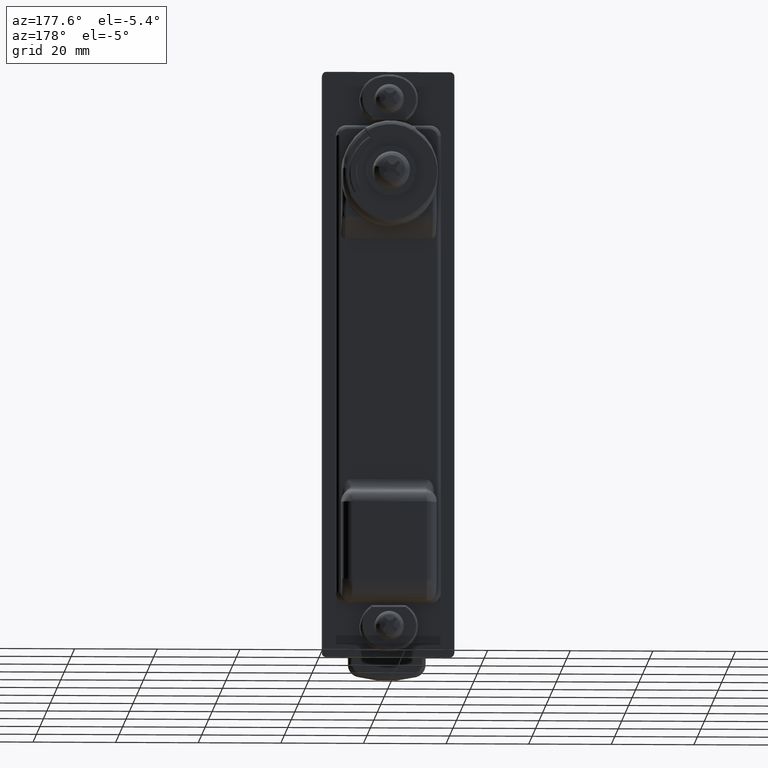
[diagram: clean part render]
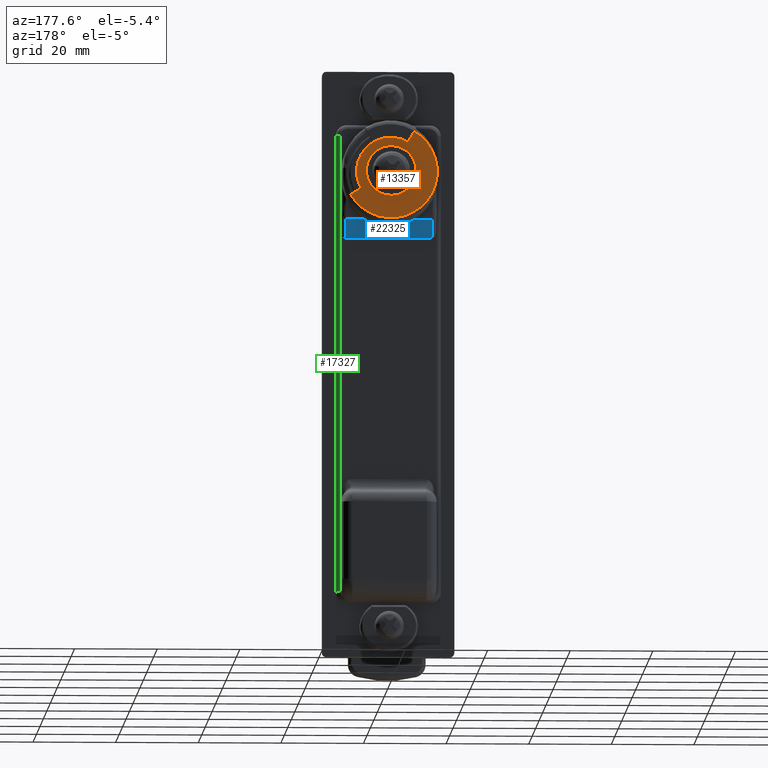
[diagram: same view with three faces highlighted in distinct colors, each labeled with its STEP entity id]
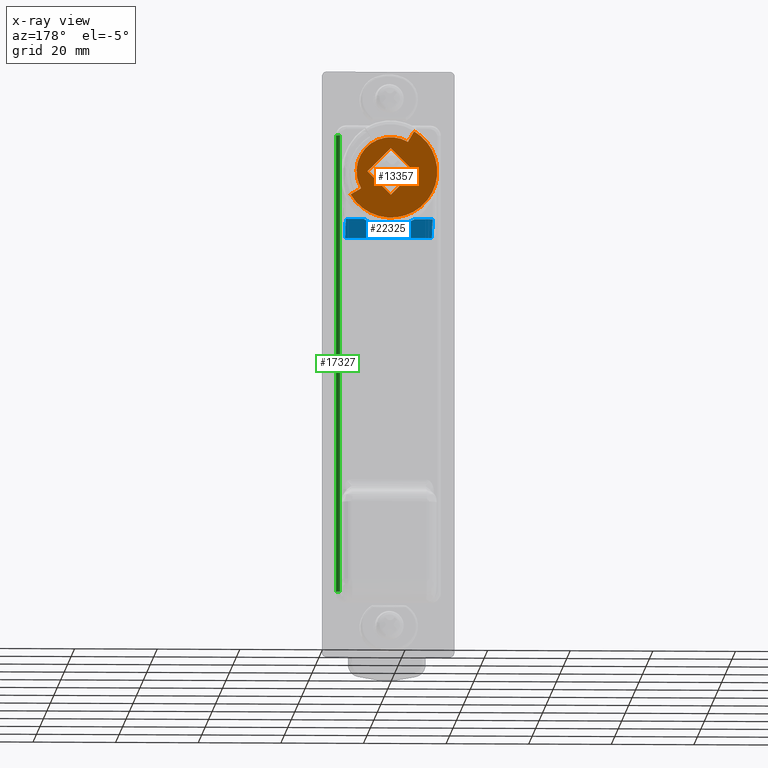
[diagram: x-ray of the same camera — body ghosted, the three highlighted faces saturated]
A machine part, auxiliary view with three faces highlighted in distinct colors.
The next image is the same camera in x-ray (body ghosted, the three faces saturated) — at least one of them is partly hidden behind the body in this view.
Their STEP definitions:

[orange] entity #13357 — the highlighted face is a freeform B-spline surface patch.
#13270=CARTESIAN_POINT('',(-2.0,-10.790604901378851,10.790604895435189));
#13271=CARTESIAN_POINT('',(-2.0,12.282398358279700,10.790604895435189));
#13272=CARTESIAN_POINT('',(-2.0,-10.790604901378851,-12.282398233863100));
#13273=CARTESIAN_POINT('',(-2.0,12.282398358279700,-12.282398233863100));
#13274=B_SPLINE_SURFACE_WITH_KNOTS('',1,1,((#13270,#13272),(#13271,#13273)),.UNSPECIFIED.,.F.,.F.,.U.,(2,2),(2,2),(0.0,23.073003259658542),(0.0,23.073003129298289),.UNSPECIFIED.);
#13275=CARTESIAN_POINT('',(-2.0,4.149999999989976,7.188010851390040));
#13276=VERTEX_POINT('',#13275);
#13277=CARTESIAN_POINT('',(-2.0,-7.188010851414280,-4.150000000021061));
#13278=VERTEX_POINT('',#13277);
#13279=CARTESIAN_POINT('',(-2.0,4.149999999989986,7.188010851390051));
#13280=CARTESIAN_POINT('',(-2.000000000000000,-1.365554716181401,10.372417851491468));
#13281=CARTESIAN_POINT('',(-2.0,-5.868986283850137,5.868986283819982));
#13282=CARTESIAN_POINT('',(-2.000000000000000,-10.372417851518872,1.365554716148496));
#13283=CARTESIAN_POINT('',(-2.0,-7.188010851414280,-4.150000000021061));
#13291=(BOUNDED_CURVE()B_SPLINE_CURVE(2,(#13279,#13280,#13281,#13282,#13283),.UNSPECIFIED.,.F.,.U.)B_SPLINE_CURVE_WITH_KNOTS((3,2,3),(0.0,0.500000000000000,1.0),.UNSPECIFIED.)CURVE()GEOMETRIC_REPRESENTATION_ITEM()RATIONAL_B_SPLINE_CURVE((1.0,0.793353340291566,1.0,0.793353340291566,1.0))REPRESENTATION_ITEM(''));
#13292=EDGE_CURVE('',#13276,#13278,#13291,.T.);
#13293=ORIENTED_EDGE('',*,*,#13292,.T.);
#13294=CARTESIAN_POINT('',(-2.0,-9.742785792579580,-5.625000000019149));
#13295=VERTEX_POINT('',#13294);
#13296=CARTESIAN_POINT('',(-2.0,-7.188010851414280,-4.150000000021061));
#13297=CARTESIAN_POINT('',(-2.0,-9.742785792579580,-5.625000000019149));
#13298=QUASI_UNIFORM_CURVE('',1,(#13296,#13297),.UNSPECIFIED.,.F.,.U.);
#13299=EDGE_CURVE('',#13278,#13295,#13298,.T.);
#13300=ORIENTED_EDGE('',*,*,#13299,.T.);
#13301=CARTESIAN_POINT('',(-2.0,5.624999999986770,9.742785792556001));
#13302=VERTEX_POINT('',#13301);
#13303=CARTESIAN_POINT('',(-2.0,-9.742785792579580,-5.625000000019149));
#13304=CARTESIAN_POINT('',(-2.0,-5.804118390152017,-12.446972055150654));
#13305=CARTESIAN_POINT('',(-2.0,1.953541998752235,-11.079087221414040));
#13306=CARTESIAN_POINT('',(-2.0,9.711202387656483,-9.711202387677425));
#13307=CARTESIAN_POINT('',(-2.0,11.079087221388599,-1.953541998772383));
#13308=CARTESIAN_POINT('',(-2.0,12.446972055120723,5.804118390132660));
#13309=CARTESIAN_POINT('',(-2.0,5.624999999986774,9.742785792556001));
#13317=(BOUNDED_CURVE()B_SPLINE_CURVE(2,(#13303,#13304,#13305,#13306,#13307,#13308,#13309),.UNSPECIFIED.,.F.,.U.)B_SPLINE_CURVE_WITH_KNOTS((3,2,2,3),(0.0,0.333333333333333,0.666666666666667,1.0),.UNSPECIFIED.)CURVE()GEOMETRIC_REPRESENTATION_ITEM()RATIONAL_B_SPLINE_CURVE((1.0,0.819152044288788,1.0,0.819152044288788,1.0,0.819152044288788,1.0))REPRESENTATION_ITEM(''));
#13318=EDGE_CURVE('',#13295,#13302,#13317,.T.);
#13319=ORIENTED_EDGE('',*,*,#13318,.T.);
#13320=CARTESIAN_POINT('',(-2.0,5.624999999986770,9.742785792556001));
#13321=CARTESIAN_POINT('',(-2.0,4.149999999989976,7.188010851390040));
#13322=QUASI_UNIFORM_CURVE('',1,(#13320,#13321),.UNSPECIFIED.,.F.,.U.);
#13323=EDGE_CURVE('',#13302,#13276,#13322,.T.);
#13324=ORIENTED_EDGE('',*,*,#13323,.T.);
#13325=EDGE_LOOP('',(#13293,#13300,#13319,#13324));
#13326=FACE_OUTER_BOUND('',#13325,.T.);
#13327=CARTESIAN_POINT('',(-2.0,5.656854249419330,-2.506440E-011));
#13328=VERTEX_POINT('',#13327);
#13329=CARTESIAN_POINT('',(-2.0,-7.332801E-011,5.656854249467450));
#13330=VERTEX_POINT('',#13329);
#13331=CARTESIAN_POINT('',(-2.0,5.656854249419330,-2.506440E-011));
#13332=CARTESIAN_POINT('',(-2.0,-7.332801E-011,5.656854249467450));
#13333=QUASI_UNIFORM_CURVE('',1,(#13331,#13332),.UNSPECIFIED.,.F.,.U.);
#13334=EDGE_CURVE('',#13328,#13330,#13333,.T.);
#13335=ORIENTED_EDGE('',*,*,#13334,.F.);
#13336=CARTESIAN_POINT('',(-2.0,-7.298695E-011,-5.656854249517460));
#13337=VERTEX_POINT('',#13336);
#13338=CARTESIAN_POINT('',(-2.0,-7.298695E-011,-5.656854249517460));
#13339=CARTESIAN_POINT('',(-2.0,5.656854249419330,-2.506440E-011));
#13340=QUASI_UNIFORM_CURVE('',1,(#13338,#13339),.UNSPECIFIED.,.F.,.U.);
#13341=EDGE_CURVE('',#13337,#13328,#13340,.T.);
#13342=ORIENTED_EDGE('',*,*,#13341,.F.);
#13343=CARTESIAN_POINT('',(-2.0,-5.656854249565580,-2.497948E-011));
#13344=VERTEX_POINT('',#13343);
#13345=CARTESIAN_POINT('',(-2.0,-5.656854249565580,-2.497948E-011));
#13346=CARTESIAN_POINT('',(-2.0,-7.298695E-011,-5.656854249517460));
#13347=QUASI_UNIFORM_CURVE('',1,(#13345,#13346),.UNSPECIFIED.,.F.,.U.);
#13348=EDGE_CURVE('',#13344,#13337,#13347,.T.);
#13349=ORIENTED_EDGE('',*,*,#13348,.F.);
#13350=CARTESIAN_POINT('',(-2.0,-7.332801E-011,5.656854249467450));
#13351=CARTESIAN_POINT('',(-2.0,-5.656854249565580,-2.497948E-011));
#13352=QUASI_UNIFORM_CURVE('',1,(#13350,#13351),.UNSPECIFIED.,.F.,.U.);
#13353=EDGE_CURVE('',#13330,#13344,#13352,.T.);
#13354=ORIENTED_EDGE('',*,*,#13353,.F.);
#13355=EDGE_LOOP('',(#13335,#13342,#13349,#13354));
#13356=FACE_BOUND('',#13355,.T.);
#13357=ADVANCED_FACE('',(#13326,#13356),#13274,.F.);

[blue] entity #22325 — the highlighted face is a freeform B-spline surface patch.
#16617=CARTESIAN_POINT('',(-11.277104234853221,-6.130673503407900,-10.729585931310220));
#16618=VERTEX_POINT('',#16617);
#16641=CARTESIAN_POINT('',(-11.277104234853221,-10.500000000000000,-10.729585931310220));
#16642=VERTEX_POINT('',#16641);
#16656=CARTESIAN_POINT('',(-11.277104234853221,-6.130673503407900,-10.729585931310220));
#16657=CARTESIAN_POINT('',(-11.277104234853221,-10.500000000000000,-10.729585931310220));
#16658=QUASI_UNIFORM_CURVE('',1,(#16656,#16657),.UNSPECIFIED.,.F.,.U.);
#16659=EDGE_CURVE('',#16618,#16642,#16658,.T.);
#18747=CARTESIAN_POINT('',(-15.499999999998900,10.500000000000000,-14.952481696455980));
#18748=VERTEX_POINT('',#18747);
#18771=CARTESIAN_POINT('',(-11.277104234853221,10.500000000000000,-10.729585931310220));
#18772=VERTEX_POINT('',#18771);
#18788=CARTESIAN_POINT('',(-15.499999999998900,10.500000000000000,-14.952481696455980));
#18789=CARTESIAN_POINT('',(-11.277104234853221,10.500000000000000,-10.729585931310220));
#18790=QUASI_UNIFORM_CURVE('',1,(#18788,#18789),.UNSPECIFIED.,.F.,.U.);
#18791=EDGE_CURVE('',#18748,#18772,#18790,.T.);
#18895=CARTESIAN_POINT('',(-11.277104234853221,6.130673503407900,-10.729585931310220));
#18896=VERTEX_POINT('',#18895);
#18912=CARTESIAN_POINT('',(-11.277104234853221,10.500000000000000,-10.729585931310220));
#18913=CARTESIAN_POINT('',(-11.277104234853221,6.130673503407900,-10.729585931310220));
#18914=QUASI_UNIFORM_CURVE('',1,(#18912,#18913),.UNSPECIFIED.,.F.,.U.);
#18915=EDGE_CURVE('',#18772,#18896,#18914,.T.);
#18940=CARTESIAN_POINT('',(-15.499999999998900,-10.500000000000000,-14.952481696455980));
#18941=VERTEX_POINT('',#18940);
#18942=CARTESIAN_POINT('',(-11.277104234853221,-10.500000000000000,-10.729585931310220));
#18943=CARTESIAN_POINT('',(-15.499999999998900,-10.500000000000000,-14.952481696455980));
#18944=QUASI_UNIFORM_CURVE('',1,(#18942,#18943),.UNSPECIFIED.,.F.,.U.);
#18945=EDGE_CURVE('',#16642,#18941,#18944,.T.);
#22142=CARTESIAN_POINT('',(-11.277104234853221,6.130673503407928,-10.729585931310220));
#22143=CARTESIAN_POINT('',(-15.140080302977969,1.994932E-014,-14.592561999435038));
#22144=CARTESIAN_POINT('',(-11.277104234853240,-6.130673503407899,-10.729585931310240));
#22152=(BOUNDED_CURVE()B_SPLINE_CURVE(2,(#22142,#22143,#22144),.UNSPECIFIED.,.F.,.U.)CURVE()GEOMETRIC_REPRESENTATION_ITEM()QUASI_UNIFORM_CURVE()RATIONAL_B_SPLINE_CURVE((1.0,0.846050950548100,1.0))REPRESENTATION_ITEM(''));
#22153=EDGE_CURVE('',#18896,#16618,#22152,.T.);
#22273=CARTESIAN_POINT('',(-15.499999999998900,10.500000000000000,-14.952481696455980));
#22274=CARTESIAN_POINT('',(-15.499999999998900,-10.500000000000000,-14.952481696455980));
#22275=QUASI_UNIFORM_CURVE('',1,(#22273,#22274),.UNSPECIFIED.,.F.,.U.);
#22276=EDGE_CURVE('',#18748,#18941,#22275,.T.);
#22312=CARTESIAN_POINT('',(-15.710933437075511,-11.548949959297930,-15.163415133532601));
#22313=CARTESIAN_POINT('',(-11.066170495731560,-11.548949959297930,-10.518652192188560));
#22314=CARTESIAN_POINT('',(-15.710933437075511,11.548950522561819,-15.163415133532601));
#22315=CARTESIAN_POINT('',(-11.066170495731560,11.548950522561819,-10.518652192188560));
#22316=B_SPLINE_SURFACE_WITH_KNOTS('',1,1,((#22312,#22314),(#22313,#22315)),.UNSPECIFIED.,.F.,.F.,.U.,(2,2),(2,2),(0.0,6.568686745656633),(0.0,23.097900481859750),.UNSPECIFIED.);
#22317=ORIENTED_EDGE('',*,*,#22153,.T.);
#22318=ORIENTED_EDGE('',*,*,#16659,.T.);
#22319=ORIENTED_EDGE('',*,*,#18945,.T.);
#22320=ORIENTED_EDGE('',*,*,#22276,.F.);
#22321=ORIENTED_EDGE('',*,*,#18791,.T.);
#22322=ORIENTED_EDGE('',*,*,#18915,.T.);
#22323=EDGE_LOOP('',(#22317,#22318,#22319,#22320,#22321,#22322));
#22324=FACE_OUTER_BOUND('',#22323,.T.);
#22325=ADVANCED_FACE('',(#22324),#22316,.F.);

[green] entity #17327 — the highlighted face is a freeform B-spline surface patch.
#17237=CARTESIAN_POINT('',(-16.500000000000000,-12.699999999999999,9.999999999996341));
#17238=VERTEX_POINT('',#17237);
#17252=CARTESIAN_POINT('',(-15.500000000000000,-11.699999999999999,9.999999999996341));
#17253=VERTEX_POINT('',#17252);
#17254=CARTESIAN_POINT('',(-16.500000000000000,-12.699999999999999,9.999999999996341));
#17255=CARTESIAN_POINT('',(-15.500000000000004,-12.699999999999999,9.999999999996341));
#17256=CARTESIAN_POINT('',(-15.500000000000000,-11.699999999999999,9.999999999996341));
#17264=(BOUNDED_CURVE()B_SPLINE_CURVE(2,(#17254,#17255,#17256),.UNSPECIFIED.,.F.,.U.)CURVE()GEOMETRIC_REPRESENTATION_ITEM()QUASI_UNIFORM_CURVE()RATIONAL_B_SPLINE_CURVE((1.0,0.707106781186548,1.0))REPRESENTATION_ITEM(''));
#17265=EDGE_CURVE('',#17238,#17253,#17264,.T.);
#17283=CARTESIAN_POINT('',(-16.508726535498369,-12.699961923064169,12.772815887055600));
#17284=CARTESIAN_POINT('',(-16.508726535498369,-12.699961923064169,-103.754771766609100));
#17285=CARTESIAN_POINT('',(-15.436398657988244,-12.709319986679548,12.772815887055607));
#17286=CARTESIAN_POINT('',(-15.436398657988244,-12.709319986679548,-103.754771766609140));
#17287=CARTESIAN_POINT('',(-15.501865201578131,-11.638951460465149,12.772815887055600));
#17288=CARTESIAN_POINT('',(-15.501865201578131,-11.638951460465149,-103.754771766609100));
#17296=(BOUNDED_SURFACE()B_SPLINE_SURFACE(1,2,((#17283,#17285,#17287),(#17284,#17286,#17288)),.UNSPECIFIED.,.F.,.F.,.U.)B_SPLINE_SURFACE_WITH_KNOTS((2,2),(3,3),(0.0,116.527587653664700),(0.0,1.0),.UNSPECIFIED.)GEOMETRIC_REPRESENTATION_ITEM()RATIONAL_B_SPLINE_SURFACE(((1.0,0.681998360062499,1.0),(1.0,0.681998360062499,1.0)))REPRESENTATION_ITEM('')SURFACE());
#17297=CARTESIAN_POINT('',(-16.500000000000000,-12.699999999999999,-100.912635482373400));
#17298=VERTEX_POINT('',#17297);
#17299=CARTESIAN_POINT('',(-15.500000000000000,-11.699999999999999,-100.912635482373400));
#17300=VERTEX_POINT('',#17299);
#17301=CARTESIAN_POINT('',(-16.500000000000000,-12.699999999999999,-100.912635482373400));
#17302=CARTESIAN_POINT('',(-15.500000000000004,-12.699999999999999,-100.912635482373400));
#17303=CARTESIAN_POINT('',(-15.500000000000000,-11.699999999999999,-100.912635482373400));
#17311=(BOUNDED_CURVE()B_SPLINE_CURVE(2,(#17301,#17302,#17303),.UNSPECIFIED.,.F.,.U.)CURVE()GEOMETRIC_REPRESENTATION_ITEM()QUASI_UNIFORM_CURVE()RATIONAL_B_SPLINE_CURVE((1.0,0.707106781186548,1.0))REPRESENTATION_ITEM(''));
#17312=EDGE_CURVE('',#17298,#17300,#17311,.T.);
#17313=ORIENTED_EDGE('',*,*,#17312,.T.);
#17314=CARTESIAN_POINT('',(-15.500000000000000,-11.699999999999999,9.999999999996341));
#17315=CARTESIAN_POINT('',(-15.500000000000000,-11.699999999999999,-100.912635482373400));
#17316=QUASI_UNIFORM_CURVE('',1,(#17314,#17315),.UNSPECIFIED.,.F.,.U.);
#17317=EDGE_CURVE('',#17253,#17300,#17316,.T.);
#17318=ORIENTED_EDGE('',*,*,#17317,.F.);
#17319=ORIENTED_EDGE('',*,*,#17265,.F.);
#17320=CARTESIAN_POINT('',(-16.500000000000000,-12.699999999999999,-100.912635482373400));
#17321=CARTESIAN_POINT('',(-16.500000000000000,-12.699999999999999,9.999999999996341));
#17322=QUASI_UNIFORM_CURVE('',1,(#17320,#17321),.UNSPECIFIED.,.F.,.U.);
#17323=EDGE_CURVE('',#17298,#17238,#17322,.T.);
#17324=ORIENTED_EDGE('',*,*,#17323,.F.);
#17325=EDGE_LOOP('',(#17313,#17318,#17319,#17324));
#17326=FACE_OUTER_BOUND('',#17325,.T.);
#17327=ADVANCED_FACE('',(#17326),#17296,.T.);